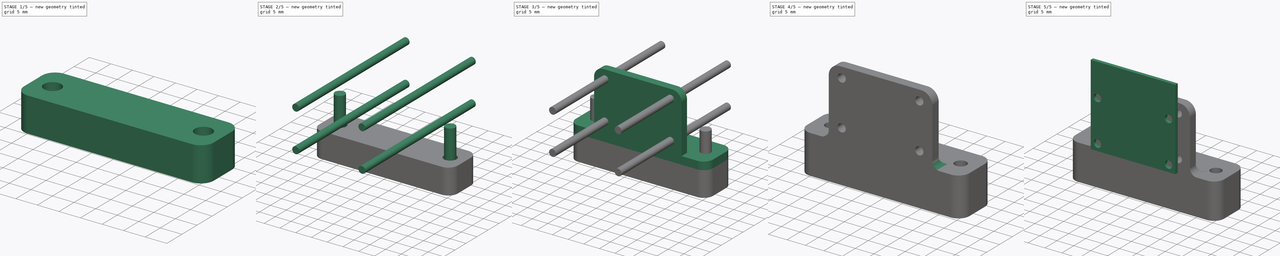
[diagram: build sequence overview — one tinted view per stage of 5, left to right]
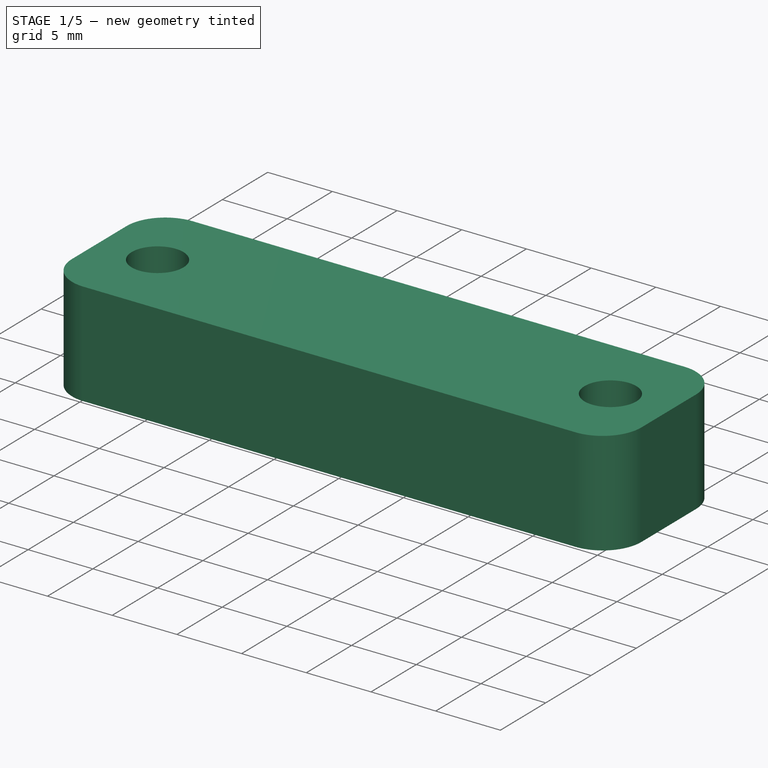
[diagram: stage 1 of 5 — iso view after this stage's code; geometry added in this stage tinted green]
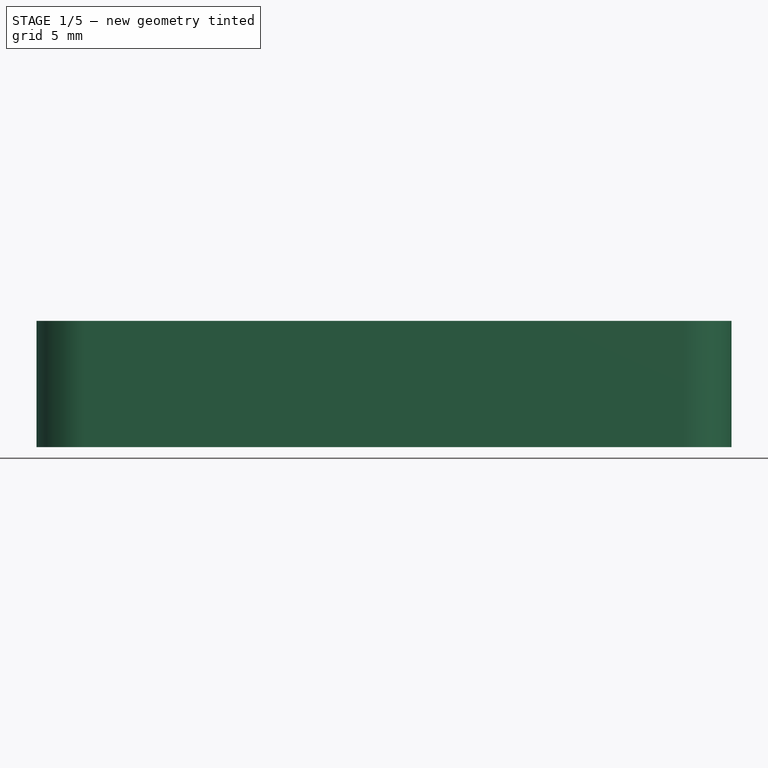
[diagram: stage 1 of 5 — front view after this stage's code; geometry added in this stage tinted green]
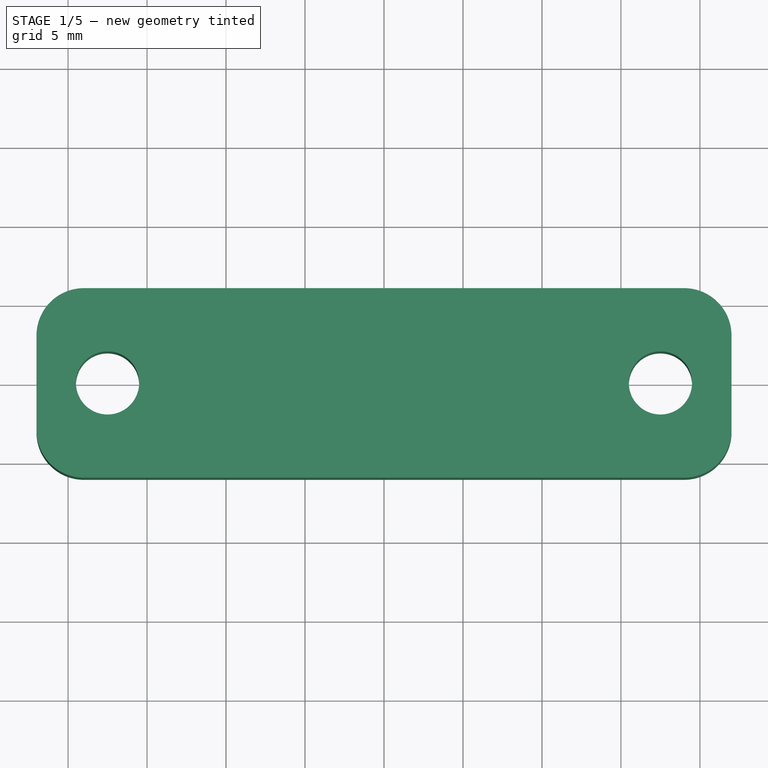
[diagram: stage 1 of 5 — top view after this stage's code; geometry added in this stage tinted green]
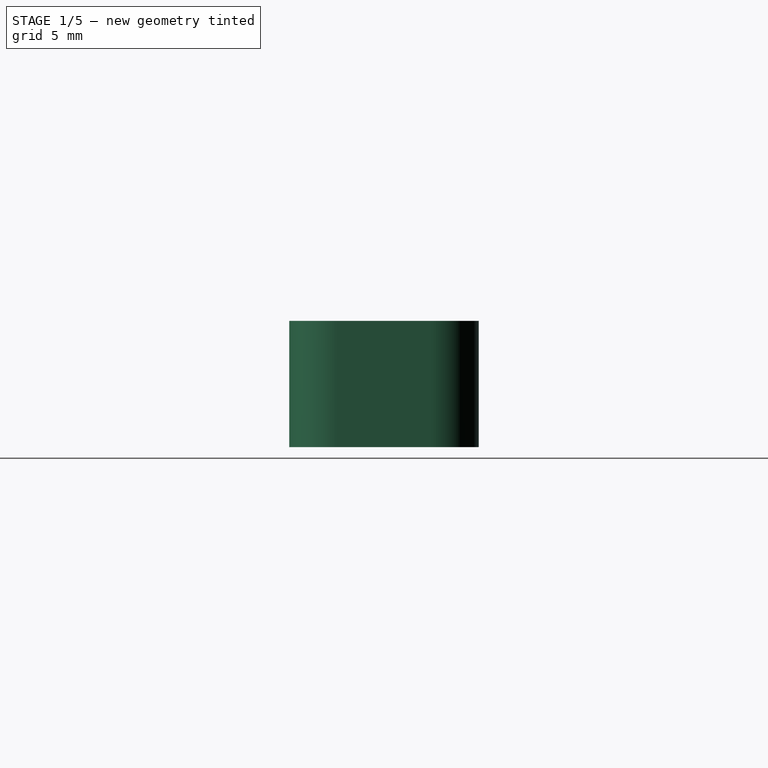
[diagram: stage 1 of 5 — right view after this stage's code; geometry added in this stage tinted green]
FCSTD DOCUMENT  (FreeCAD 0.16R6703 (Git))
Label: prt_raspi_cam_v0.1_
License: All rights reserved
LicenseURL: http://en.wikipedia.org/wiki/All_rights_reserved
objects: Part::FeaturePython×6, Part::Cylinder×5, Part::Fillet×4, Part::Cut×4, Part::Box×3, Part::Feature×2, Part::MultiFuse×2, Sketcher::SketchObject×1, PartDesign::Pad×1, App::FeaturePython×1, Part::Part2DObjectPython×1, Drawing::FeatureViewPart×1, Drawing::FeaturePage×1
note: 30 computed .brp shape members not serialized (recipe doc carries the construction recipe); baked Part::Feature solids carry a one-line shape summary decoded from their .brp

FEATURE [App::FeaturePython] Dimension  # Draft dimension (typed FeaturePython)
  Dimline = (192.123,-209.759,37)
  Direction = (0,0,0)
  Distance = 35
  End = (195,-200,37)
  Normal = (0,0,1)
  Start = (160,-200,37)
FEATURE [Part::Part2DObjectPython] Line  # Draft 2D object (typed FeaturePython)
  ChamferSize = 0
  Closed = false
  End = (195,-200,37)
  FilletRadius = 0
  Length = 35
  MakeFace = true
  Points = (2) [(160,-200,37),(195,-200,37)]
  Start = (160,-200,37)
  Subdivisions = 0
FEATURE [Part::Box] Box  label="support_acryl_8mm_"
  Height = 8
  Length = 44
  Placement = pos=(-22,-6,-8) rot=(0,0,1;0rad)
  Width = 12
FEATURE [Part::Cylinder] Cylinder  label="m4_"
  Angle = 360
  Height = 15
  Placement = pos=(-17.5,0,-10) rot=(0,0,1;0rad)
  Radius = 2
FEATURE [Part::FeaturePython] Array  # Draft array (typed FeaturePython)
  Angle = 360
  ArrayType = 0
  Axis = (0,0,1)
  Base = -> Cylinder
  Center = (0,0,0)
  Fuse = false
  IntervalAxis = (0,0,0)
  IntervalX = (35,0,0)
  IntervalY = (0,1,0)
  IntervalZ = (0,0,0)
  NumberPolar = 1
  NumberX = 2
  NumberY = 1
  NumberZ = 1
FEATURE [Part::Fillet] Fillet003
  Base = -> Box
  Edges = 4 edges r=3: [Edge1,Edge3,Edge5,Edge7]
FEATURE [Part::Cut] Cut  label="entretoise_cam_v0.1_"
  Base = -> Fillet003
  Tool = -> Array
FEATURE [Drawing::FeatureViewPart] Ortho  label="Ortho_0_0"
  Direction = (0,0,1)
  HiddenWidth = 0.15
  LineWidth = 0.35
  Rotation = 0
  ShowHiddenLines = false
  ShowSmoothLines = false
  Source = -> Cut
  Tolerance = 0.05
  ViewResult = <g id="Ortho_0_0"\n   transform="rotate(0,148.5,105) translate(148.5,105) scale(1,1)"\n  >\n<g   stroke="rgb(0, 0, 0)"\n   stroke-width="0.35"\n   stroke-linecap="butt"\n   stroke-linejoin="miter"\n   fill="none"\n   transform="scale(1,-1)"\n  >\n<path id= "1" d=" M -22 -3 L -22 3 " />\n<path d="M-22 -3 A3 3 0 0 1 -19 -6" /><path d="M-22 3 A3 3 0 0 0 -19 6" /><path id= "4" d=" M -19 -6 L 19 -6 " />\n<path id= "5" d=" M -19 6 L 19 6 " />\n<path d="M22 -3 A3 3 0 0 0 19 -6" /><path d="M22 3 A3 3 0 0 1 19 6" /><path id= "8" d=" M 22 -3 L 22 3 " />\n<circle cx ="17.5" cy ="0" r ="2" /><circle cx ="-17.5" cy ="0" r ="2" /></g>\n</g>
  Visible = true
  X = 148.5
  Y = 105
FEATURE [Drawing::FeaturePage] Page  label="Page_entretoise_cam_v0.1_"
  Group = -> [Ortho]
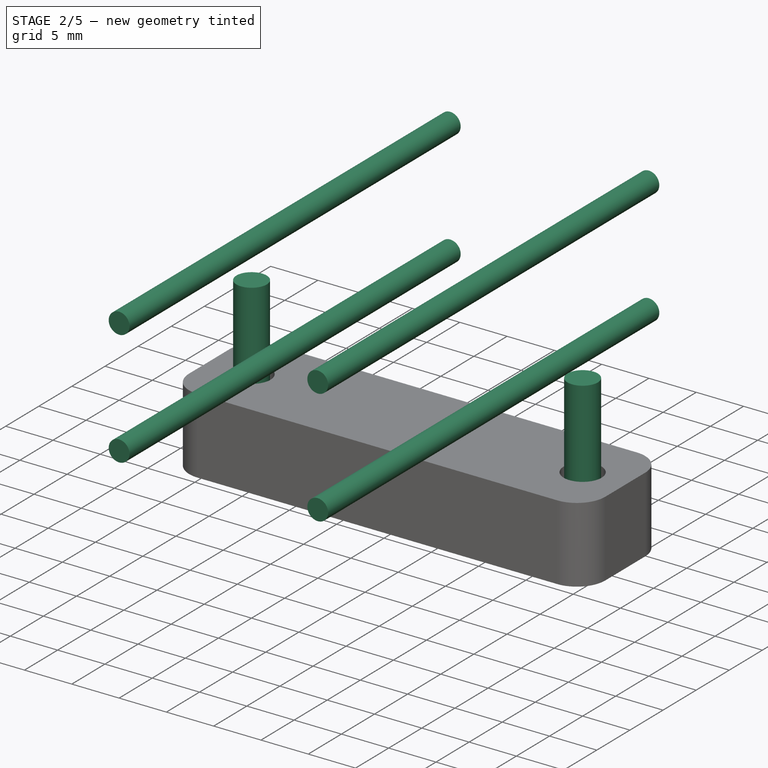
[diagram: stage 2 of 5 — iso view after this stage's code; geometry added in this stage tinted green]
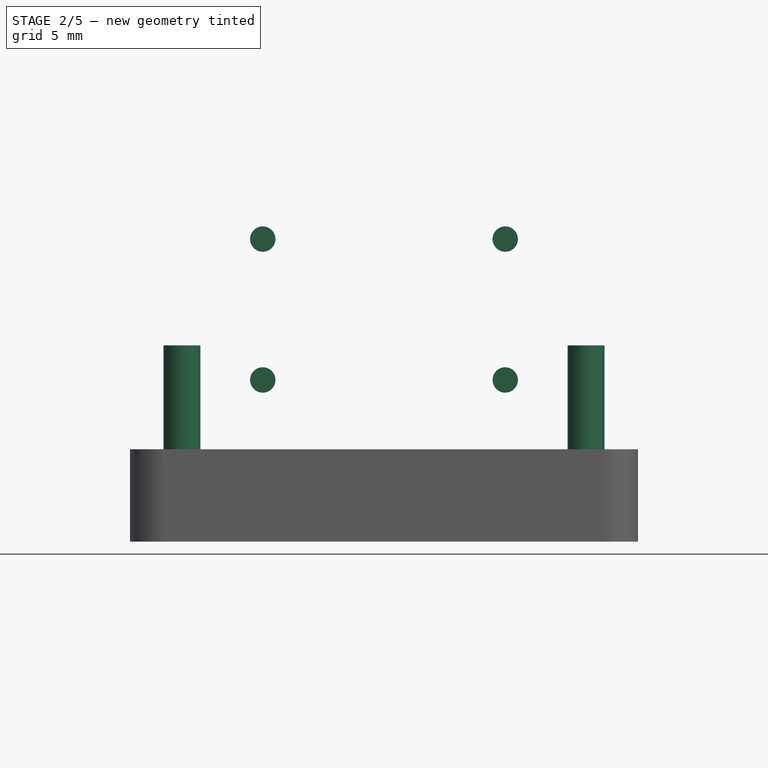
[diagram: stage 2 of 5 — front view after this stage's code; geometry added in this stage tinted green]
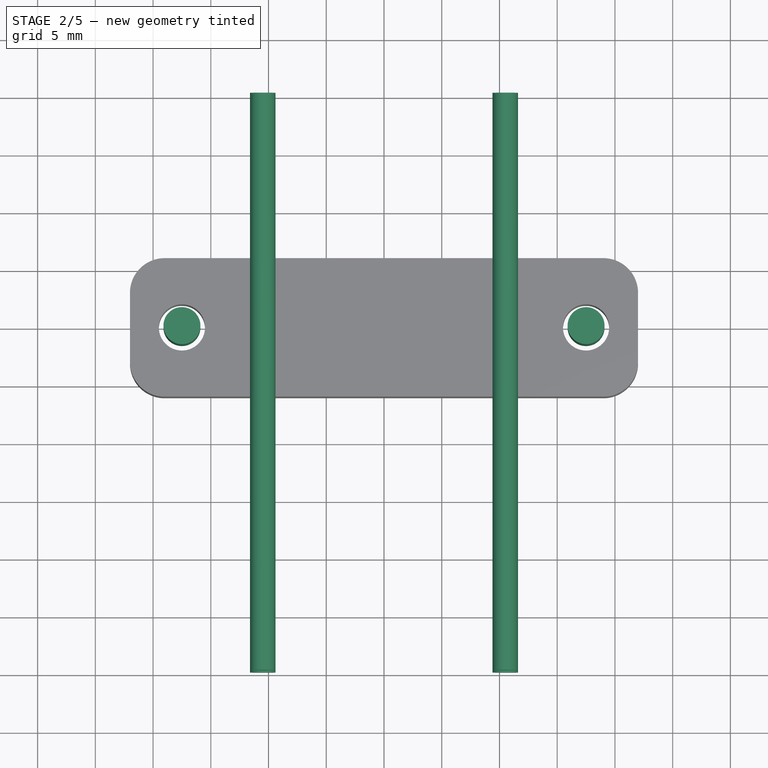
[diagram: stage 2 of 5 — top view after this stage's code; geometry added in this stage tinted green]
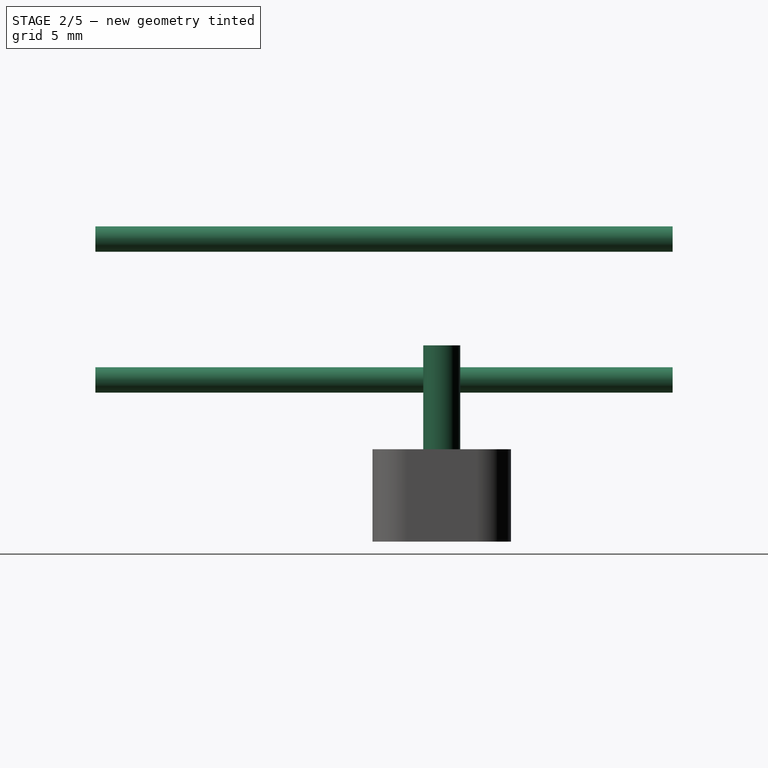
[diagram: stage 2 of 5 — right view after this stage's code; geometry added in this stage tinted green]
FEATURE [Part::Cylinder] Cylinder001  label="m2_"
  Angle = 360
  Height = 50
  Placement = pos=(-10.5,20,6) rot=(1,0,0;1.5708rad)
  Radius = 1.1
FEATURE [Part::FeaturePython] Array001  # Draft array (typed FeaturePython)
  Angle = 360
  ArrayType = 0
  Axis = (0,0,1)
  Base = -> Cylinder001
  Center = (0,0,0)
  Fuse = false
  IntervalAxis = (0,0,0)
  IntervalX = (21,0,0)
  IntervalY = (0,1,0)
  IntervalZ = (0,0,12.2)
  NumberPolar = 1
  NumberX = 2
  NumberY = 1
  NumberZ = 2
FEATURE [Part::Cylinder] Cylinder002  label="m3_001"
  Angle = 360
  Height = 10
  Placement = pos=(-17.5,0,-1) rot=(0,0,1;0rad)
  Radius = 1.6
FEATURE [Part::FeaturePython] Array002  # Draft array (typed FeaturePython)
  Angle = 360
  ArrayType = 0
  Axis = (0,0,1)
  Base = -> Cylinder002
  Center = (0,0,0)
  Fuse = false
  IntervalAxis = (0,0,0)
  IntervalX = (35,0,0)
  IntervalY = (0,1,0)
  IntervalZ = (0,0,0)
  NumberPolar = 1
  NumberX = 2
  NumberY = 1
  NumberZ = 1
FEATURE [Part::MultiFuse] Fusion001
  Shapes = -> [Array002,Array001]
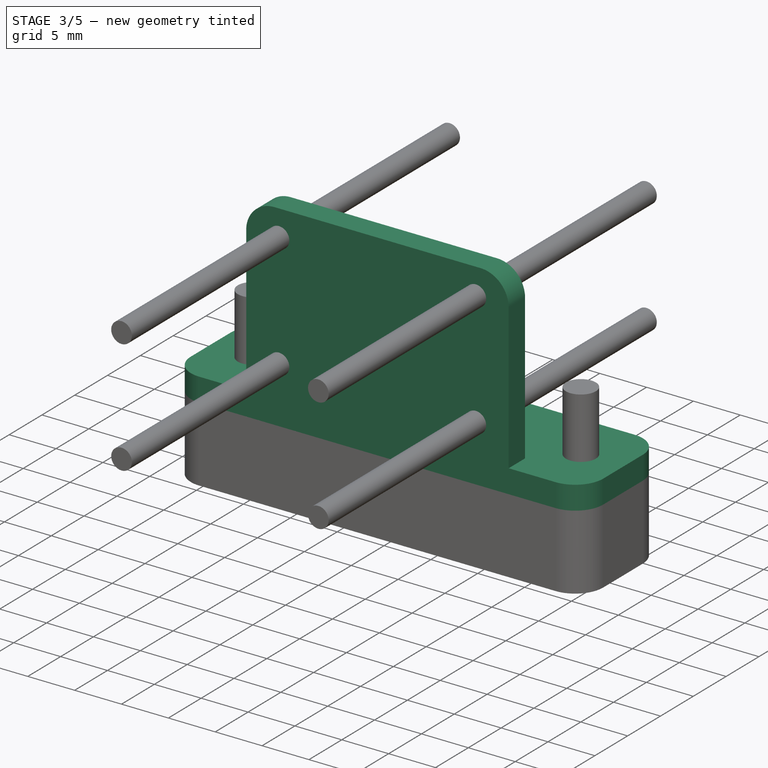
[diagram: stage 3 of 5 — iso view after this stage's code; geometry added in this stage tinted green]
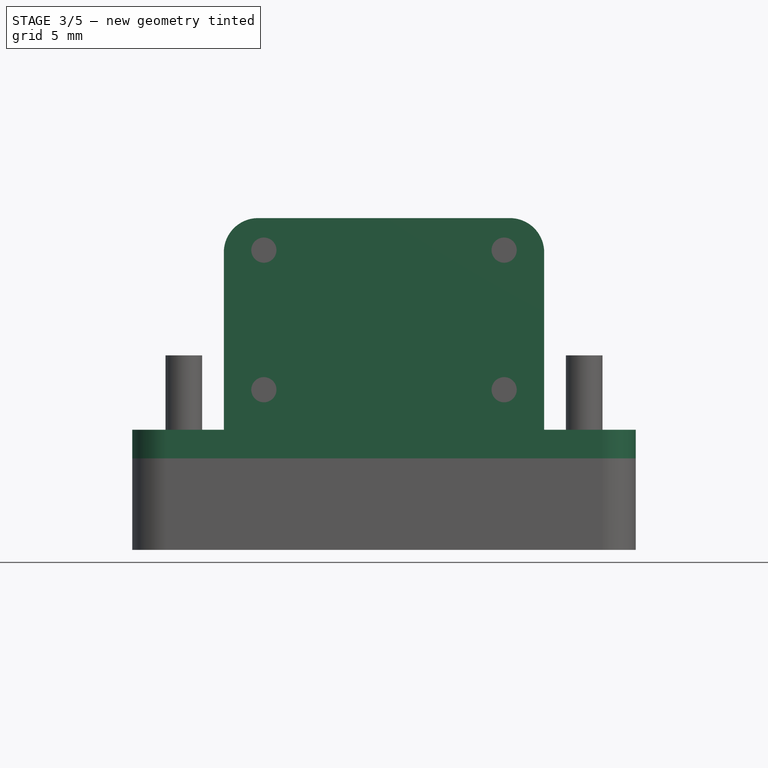
[diagram: stage 3 of 5 — front view after this stage's code; geometry added in this stage tinted green]
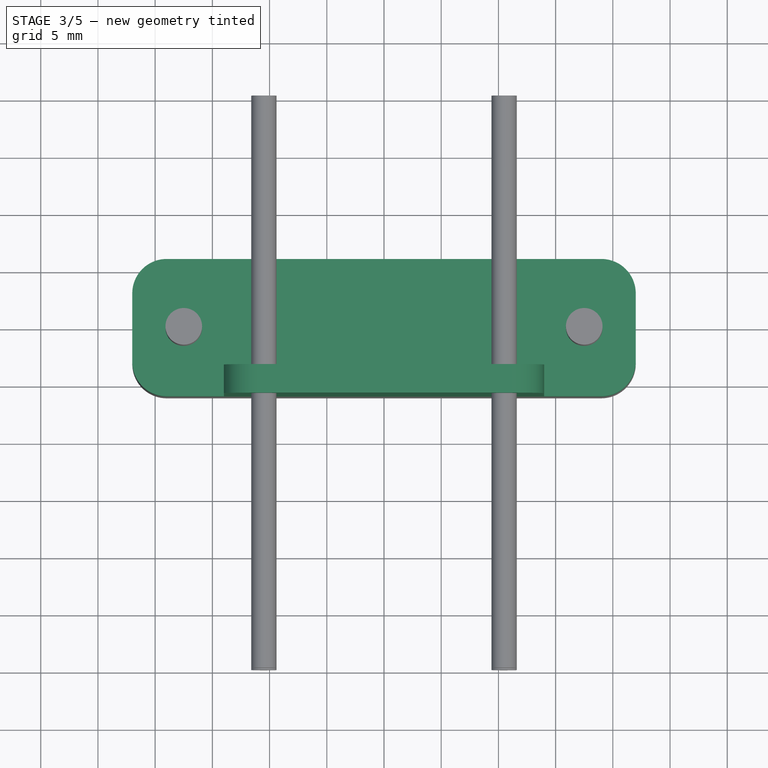
[diagram: stage 3 of 5 — top view after this stage's code; geometry added in this stage tinted green]
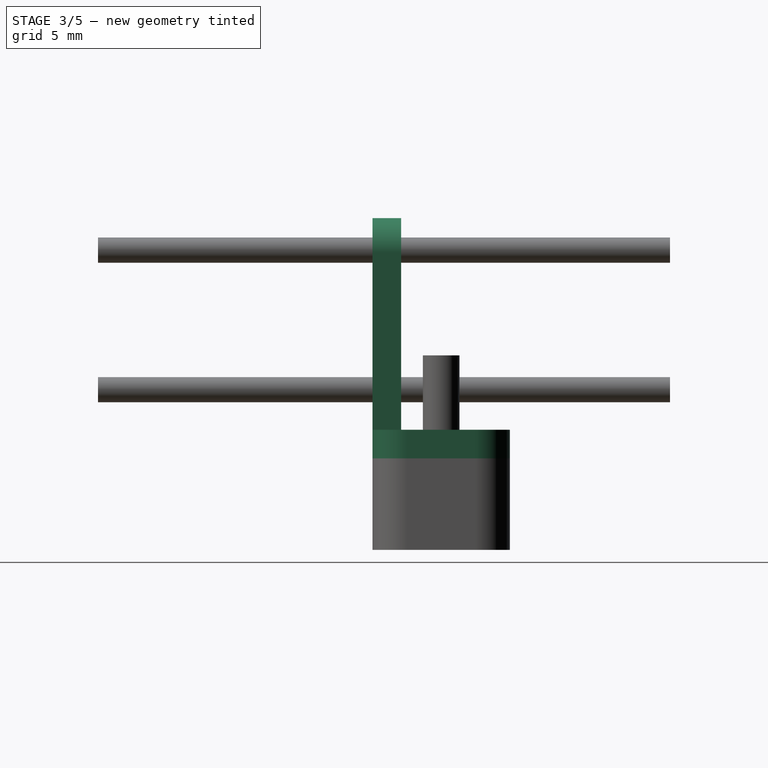
[diagram: stage 3 of 5 — right view after this stage's code; geometry added in this stage tinted green]
FEATURE [Part::Box] Box001  label="support_vert_"
  Height = 21
  Length = 28
  Placement = pos=(-14,-6,0) rot=(0,0,1;0rad)
  Width = 2.5
FEATURE [Part::Box] Box002  label="support_horz_"
  Height = 2.5
  Length = 44
  Placement = pos=(-22,-6,0) rot=(0,0,1;0rad)
  Width = 12
FEATURE [Part::Fillet] Fillet
  Base = -> Box002
  Edges = 4 edges r=3: [Edge1,Edge3,Edge5,Edge7]
FEATURE [Part::Fillet] Fillet001
  Base = -> Box001
  Edges = 2 edges r=3: [Edge2,Edge6]
FEATURE [Part::MultiFuse] Fusion
  Shapes = -> [Fillet,Fillet001]
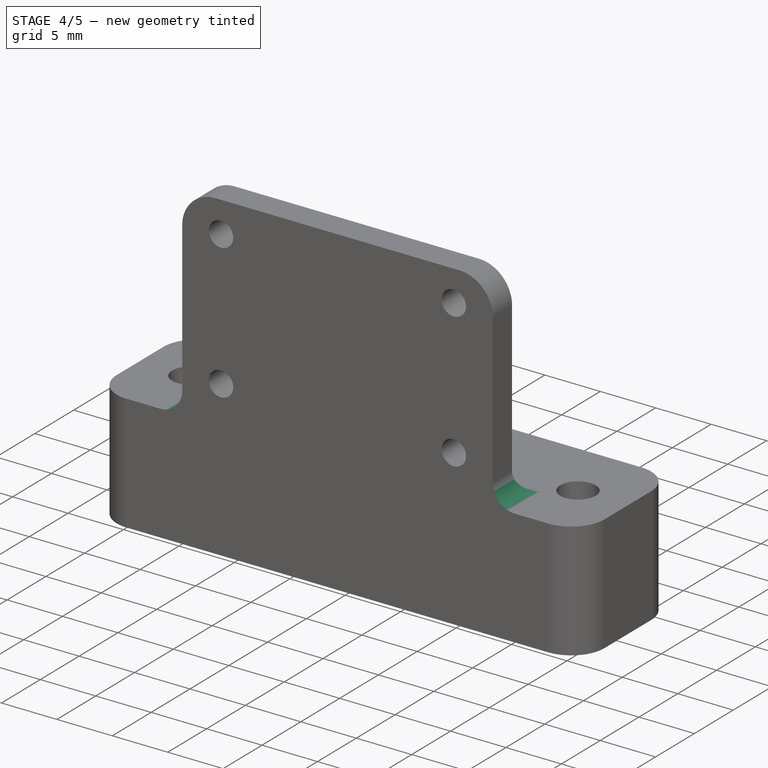
[diagram: stage 4 of 5 — iso view after this stage's code; geometry added in this stage tinted green]
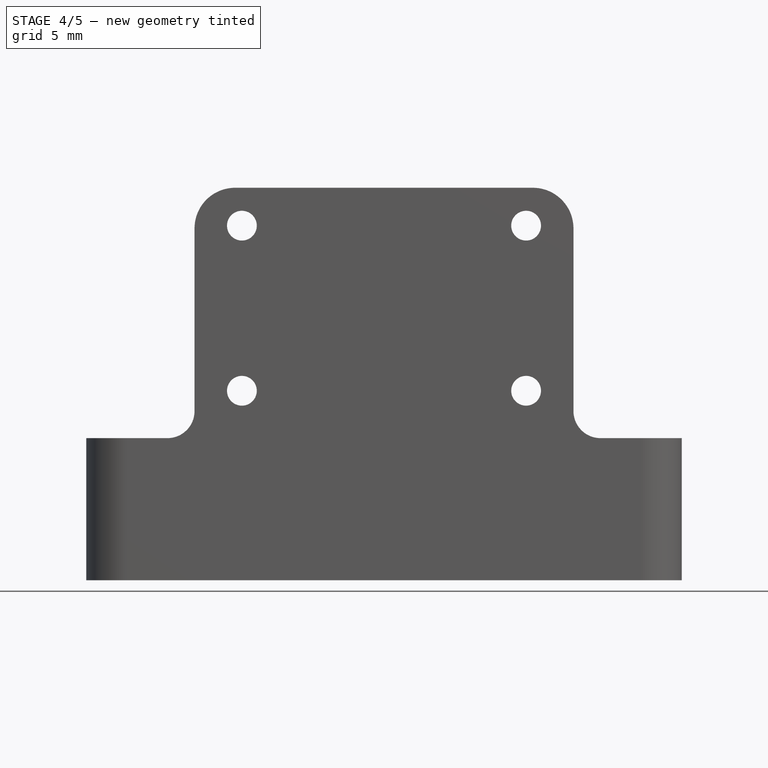
[diagram: stage 4 of 5 — front view after this stage's code; geometry added in this stage tinted green]
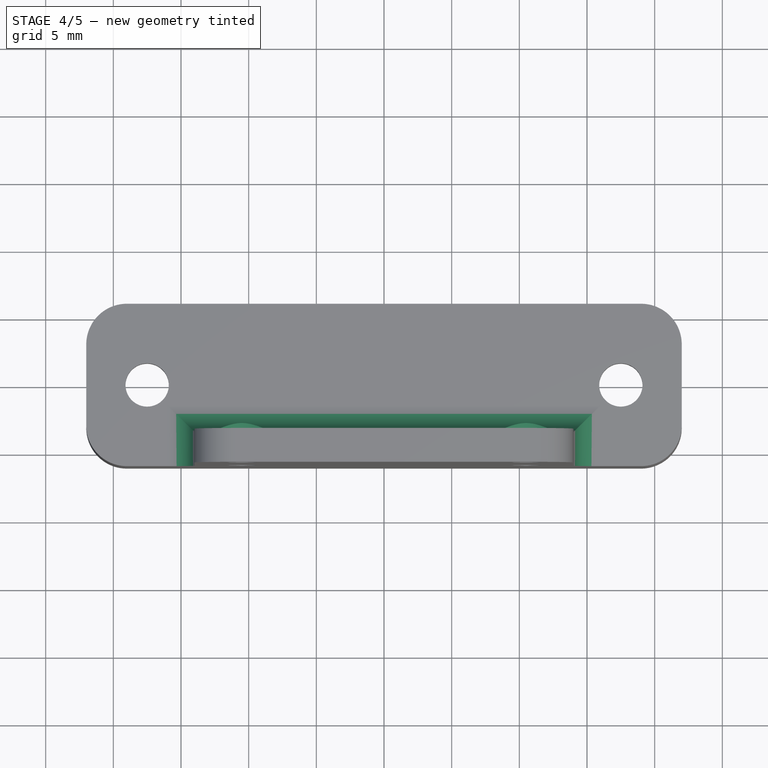
[diagram: stage 4 of 5 — top view after this stage's code; geometry added in this stage tinted green]
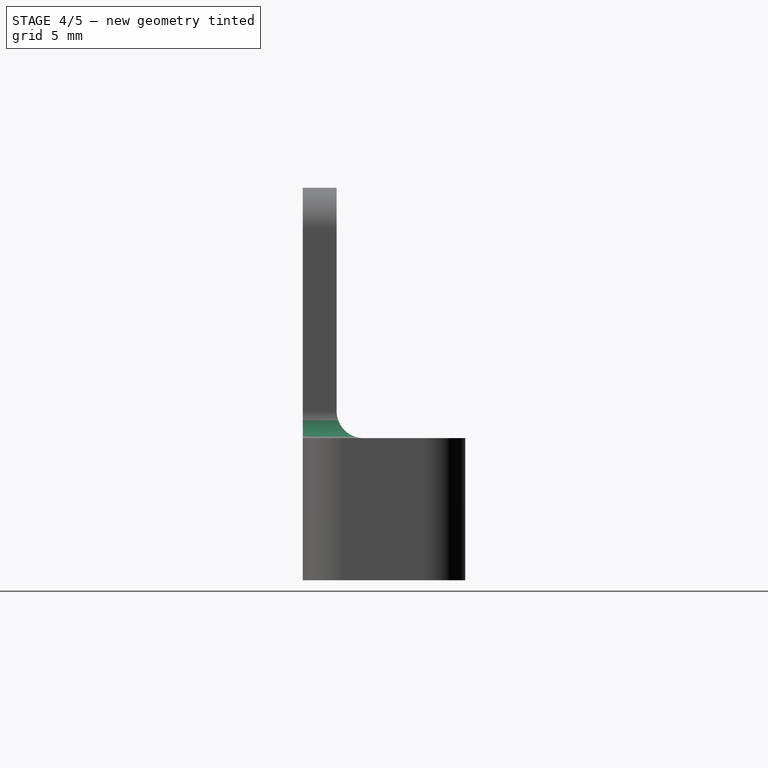
[diagram: stage 4 of 5 — right view after this stage's code; geometry added in this stage tinted green]
FEATURE [Part::Fillet] Fillet002
  Base = -> Fusion
  Edges = 3 edges r=2: [Edge11,Edge12,Edge13]
FEATURE [Part::Cylinder] Cylinder003  label="m2_001"
  Angle = 360
  Height = 10
  Placement = pos=(-10.5,6.5,6) rot=(1,0,0;1.5708rad)
  Radius = 3
FEATURE [Part::FeaturePython] Array003  # Draft array (typed FeaturePython)
  Angle = 360
  ArrayType = 0
  Axis = (0,0,1)
  Base = -> Cylinder003
  Center = (0,0,0)
  Fuse = false
  IntervalAxis = (0,0,0)
  IntervalX = (21,0,0)
  IntervalY = (0,1,0)
  IntervalZ = (0,0,12.2)
  NumberPolar = 1
  NumberX = 2
  NumberY = 1
  NumberZ = 1
FEATURE [Part::Cut] Cut002006002004
  Base = -> Fillet002
  Tool = -> Fusion001
FEATURE [Part::Cut] Cut002006002005
  Base = -> Cut002006002004
  Tool = -> Array003
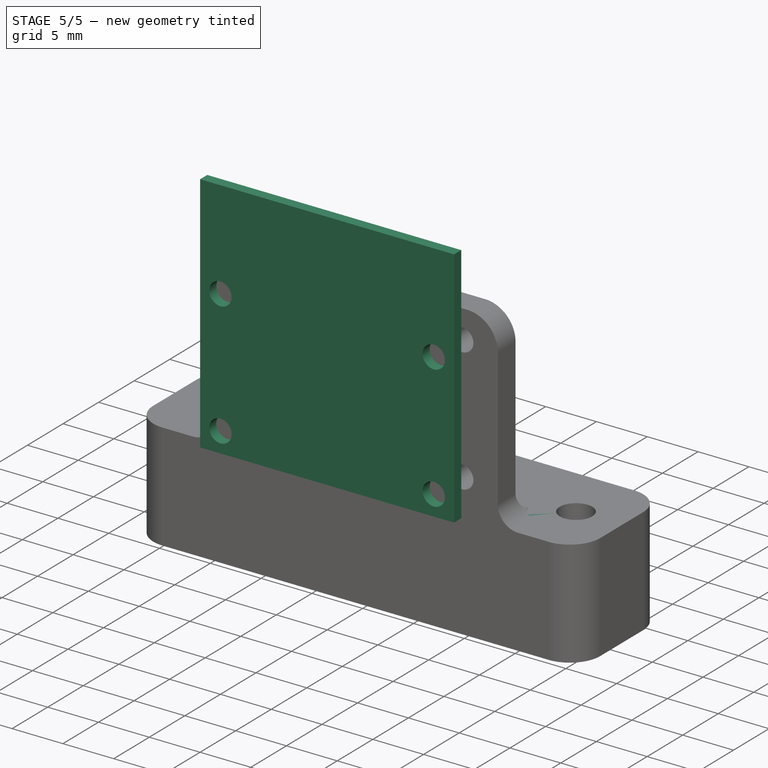
[diagram: stage 5 of 5 — iso view after this stage's code; geometry added in this stage tinted green]
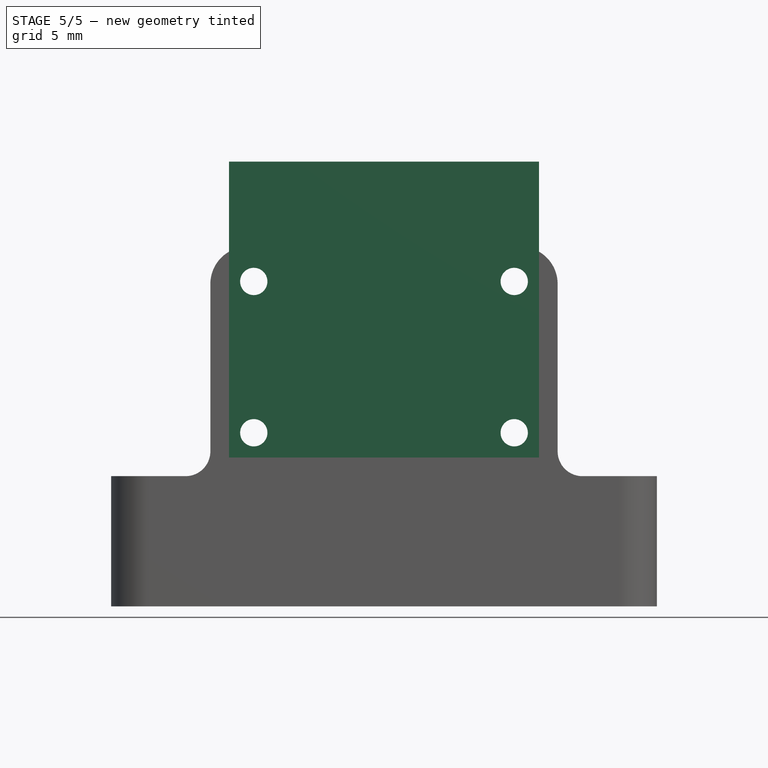
[diagram: stage 5 of 5 — front view after this stage's code; geometry added in this stage tinted green]
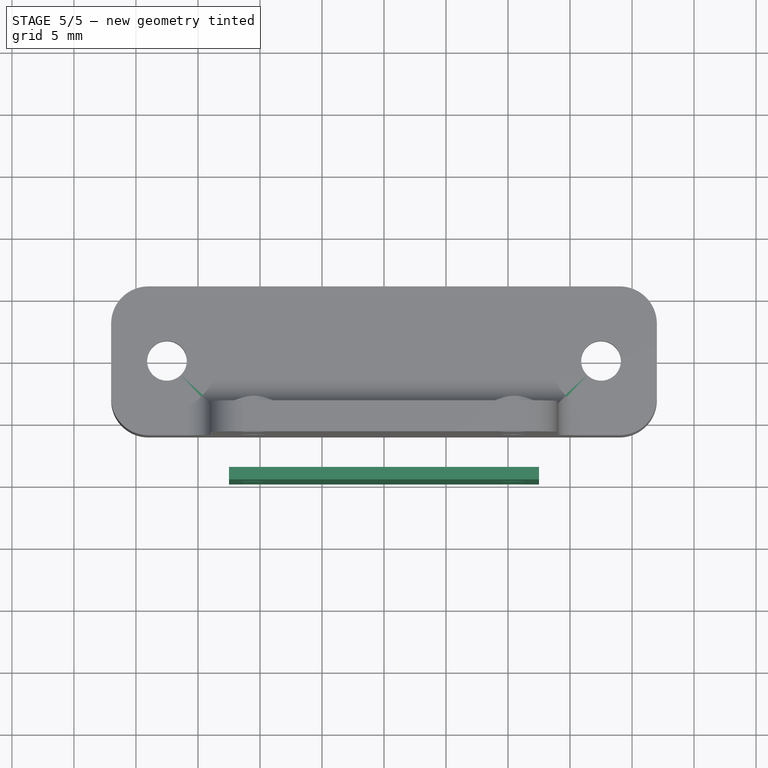
[diagram: stage 5 of 5 — top view after this stage's code; geometry added in this stage tinted green]
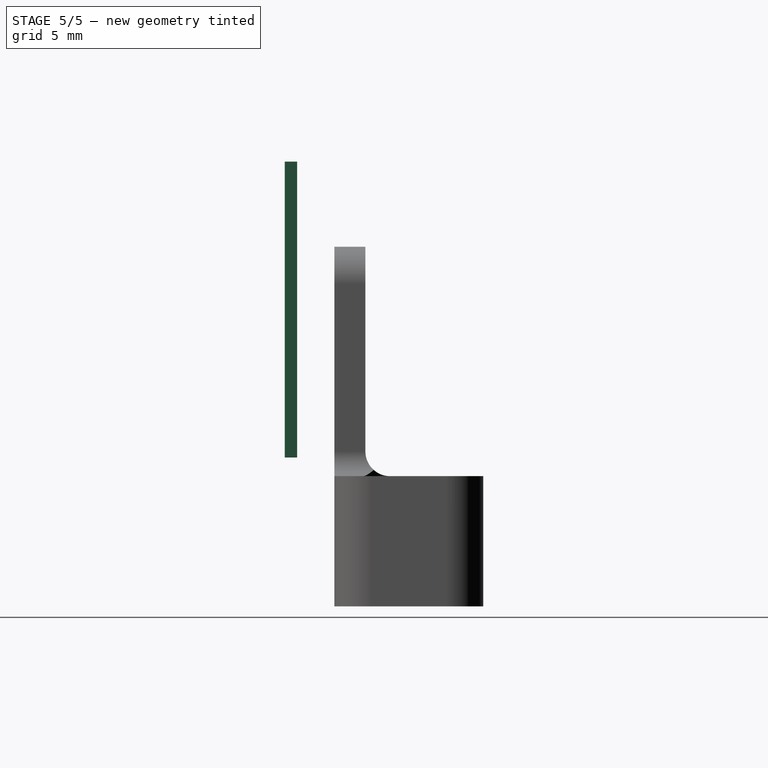
[diagram: stage 5 of 5 — right view after this stage's code; geometry added in this stage tinted green]
FEATURE [Part::Feature] Cut002006002002  label="mini_rbt_top_v0.2_002"
  shape: bbox 280 x 400 x 8 mm, 50 faces (baked)
FEATURE [Part::Feature] Cut002006002003  label="mini_rbt_btm_v0.2_001"
  shape: bbox 280 x 400 x 8 mm, 58 faces (baked)
FEATURE [Sketcher::SketchObject] Sketch
  Placement = pos=(0,0,0) rot=(-1,0,0;4.71239rad)
  sketch-geometry (8):
    g0: LineSegment StartX=-8.1 StartY=12.5 StartZ=0 EndX=15.762 EndY=12.5 EndZ=0
    g1: LineSegment StartX=15.762 StartY=12.5 StartZ=0 EndX=15.762 EndY=-12.5 EndZ=0
    g2: LineSegment StartX=15.762 StartY=-12.5 StartZ=0 EndX=-8.1 EndY=-12.5 EndZ=0
    g3: LineSegment StartX=-8.1 StartY=-12.5 StartZ=0 EndX=-8.1 EndY=12.5 EndZ=0
    g4: Circle CenterX=-6.1 CenterY=10.5 CenterZ=0 NormalX=0 NormalY=0 NormalZ=1 Radius=1.1
    g5: Circle CenterX=-6.1 CenterY=-10.5 CenterZ=0 NormalX=0 NormalY=0 NormalZ=1 Radius=1.1
    g6: Circle CenterX=6.1 CenterY=10.5 CenterZ=0 NormalX=0 NormalY=0 NormalZ=1 Radius=1.1
    g7: Circle CenterX=6.1 CenterY=-10.5 CenterZ=0 NormalX=0 NormalY=0 NormalZ=1 Radius=1.1
  constraints (21):
    c: Coincident(g0,g1)
    c: Coincident(g1,g2)
    c: Coincident(g2,g3)
    c: Coincident(g3,g0)
    c: Horizontal(g0)
    c: Horizontal(g2)
    c: Vertical(g1)
    c: Vertical(g3)
    c: Equal(g4,g6)
    c: Equal(g6,g7)
    c: Equal(g7,g5)
    c: Symmetric(g4,g5,g-1)
    c: Symmetric(g4,g6,g-2)
    c: Symmetric(g5,g7,g-2)
    c: DistanceY(g5,g4) = 21
    c: DistanceX(g0,g4) = 2
    c: DistanceY(g4,g0) = 2
    c: DistanceY(g2,g5) = 2
    c: DistanceX(g0,g6) = 14.2
    c: DistanceX(g0,g0) = 23.862
    c: Radius(g4) = 1.1
FEATURE [PartDesign::Pad] Pad  label="raspi_cam_v2.1_"
  Length = 1
  Length2 = 100
  Placement = pos=(0,0,0) rot=(-1,0,0;4.71239rad)
  Sketch = -> Sketch
  Type = 0
FEATURE [Part::FeaturePython] Clone  label="Clone of raspi_cam_v2.1_"  # Draft clone (typed FeaturePython)
  Objects = -> [Pad]
  Placement = pos=(0,-9,12.1) rot=(-0.57735,0.57735,-0.57735;4.18879rad)
  Scale = (1,1,1)
FEATURE [Part::Cylinder] Cylinder004  label="m3_002"
  Angle = 360
  Height = 5
  Placement = pos=(-17.5,0,2.5) rot=(0,0,1;0rad)
  Radius = 4
FEATURE [Part::FeaturePython] Array004  # Draft array (typed FeaturePython)
  Angle = 360
  ArrayType = 0
  Axis = (0,0,1)
  Base = -> Cylinder004
  Center = (0,0,0)
  Fuse = false
  IntervalAxis = (0,0,0)
  IntervalX = (35,0,0)
  IntervalY = (0,1,0)
  IntervalZ = (0,0,0)
  NumberPolar = 1
  NumberX = 2
  NumberY = 1
  NumberZ = 1
FEATURE [Part::Cut] Cut002006002006  label="prt_raspi_cam_v0.1_"
  Base = -> Cut002006002005
  Tool = -> Array004
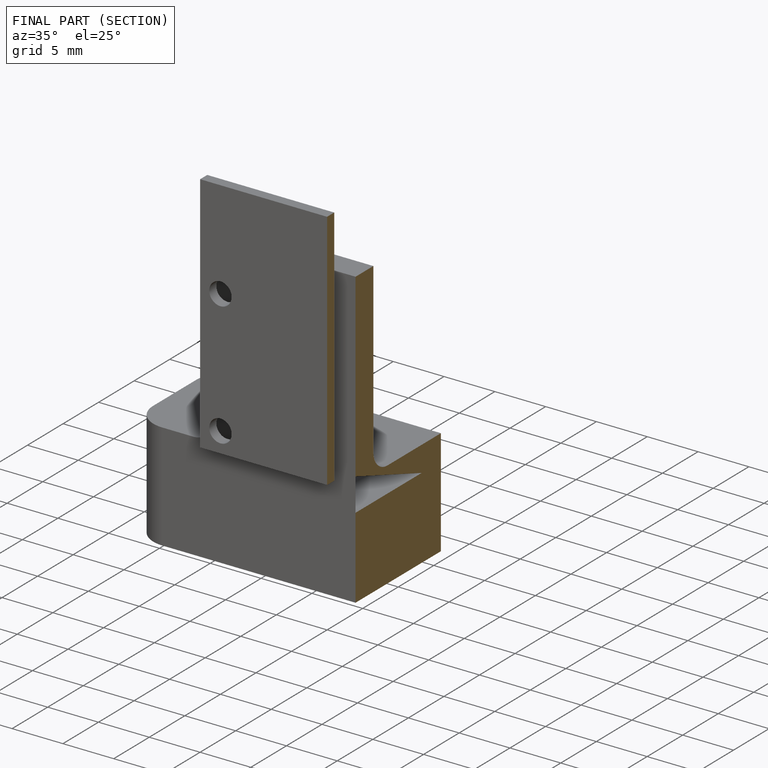
[diagram: finished part — half-section view (interior)]
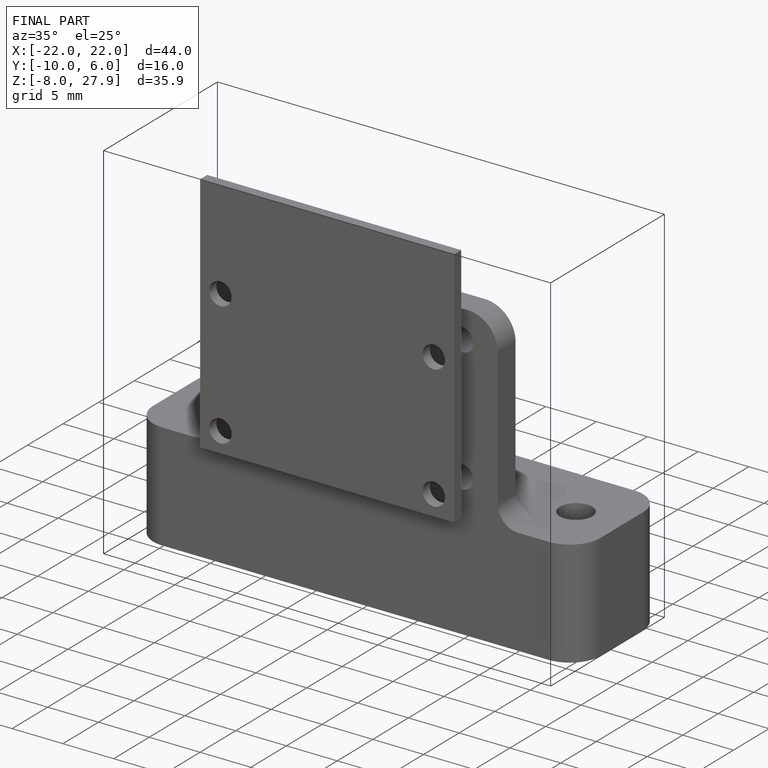
[diagram: finished part — iso view with bounding-box wireframe]
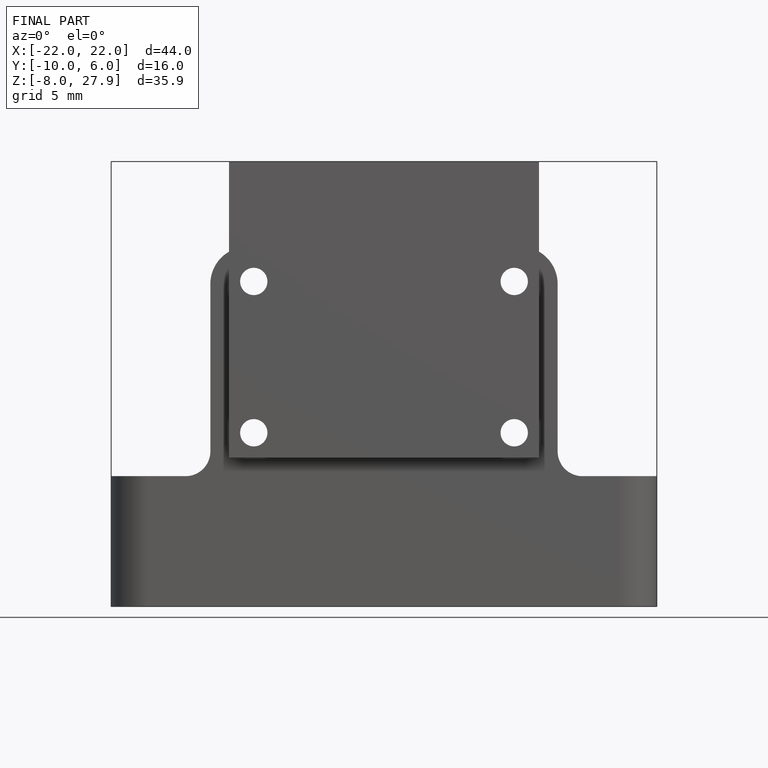
[diagram: finished part — front view with bounding-box wireframe]
